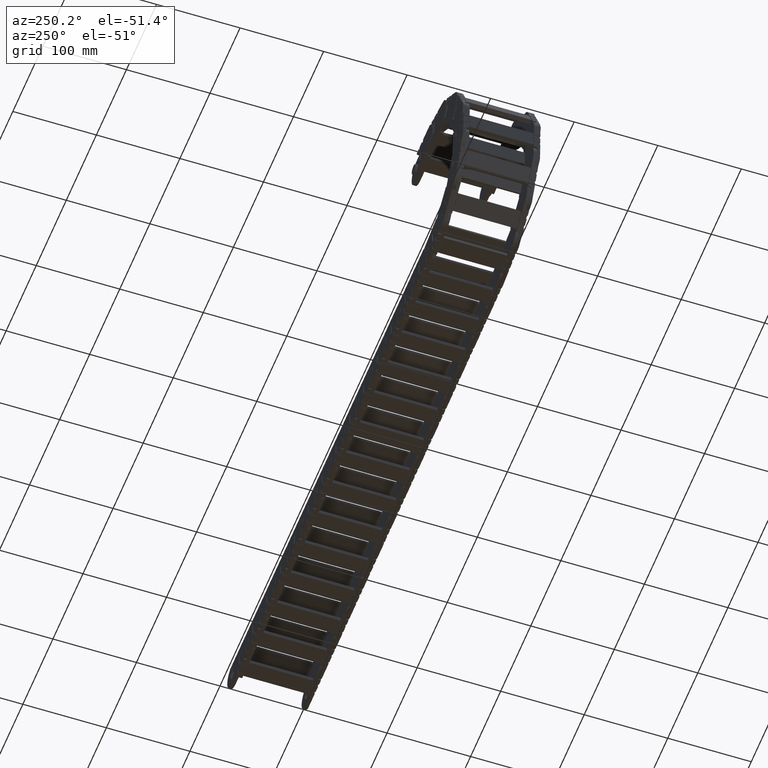
[diagram: clean part render]
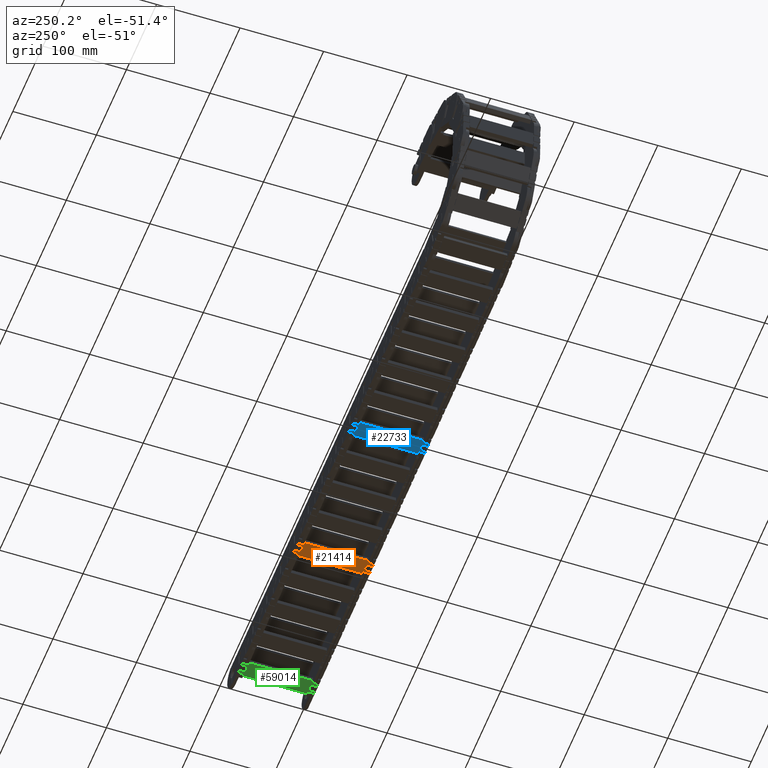
[diagram: same view with three faces highlighted in distinct colors, each labeled with its STEP entity id]
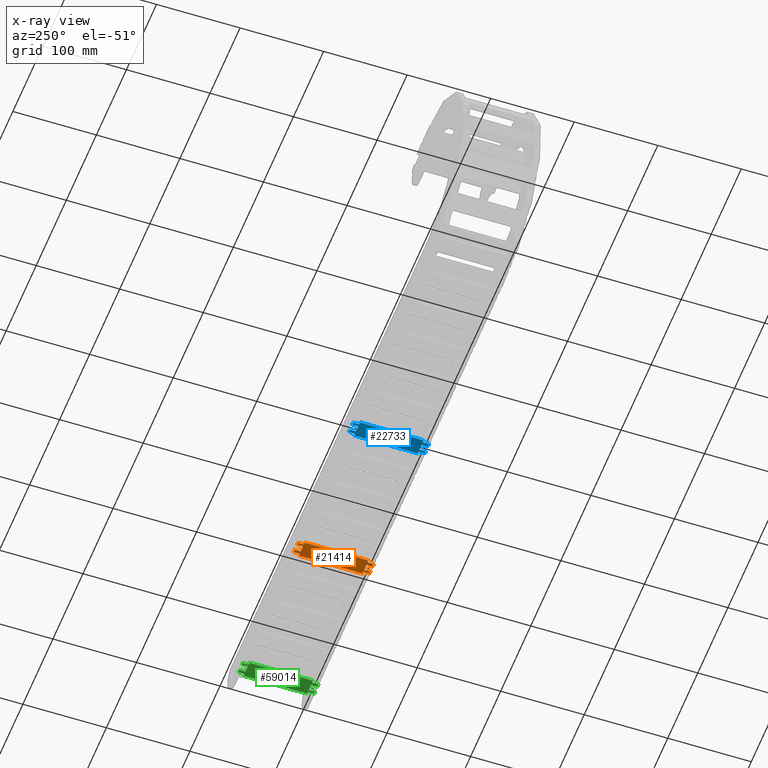
[diagram: x-ray of the same camera — body ghosted, the three highlighted faces saturated]
A machine part, auxiliary view with three faces highlighted in distinct colors.
The next image is the same camera in x-ray (body ghosted, the three faces saturated) — at least one of them is partly hidden behind the body in this view.
Their STEP definitions:

[orange] entity #21414 — the highlighted planar face has unit normal (0, 0, -1).
#486 = LINE ( 'NONE', #66234, #73145 ) ;
#871 = VERTEX_POINT ( 'NONE', #68301 ) ;
#1765 = EDGE_CURVE ( 'NONE', #1865, #20593, #60029, .T. ) ;
#1865 = VERTEX_POINT ( 'NONE', #11821 ) ;
#2405 = VERTEX_POINT ( 'NONE', #26768 ) ;
#2855 = VERTEX_POINT ( 'NONE', #51152 ) ;
#3100 = VECTOR ( 'NONE', #74274, 39.37007874015748143 ) ;
#3180 = ORIENTED_EDGE ( 'NONE', *, *, #47495, .F. ) ;
#4668 = DIRECTION ( 'NONE',  ( 0.000000000000000000, 1.000000000000000000, 0.000000000000000000 ) ) ;
#5022 = EDGE_CURVE ( 'NONE', #42110, #871, #59870, .T. ) ;
#5215 = DIRECTION ( 'NONE',  ( 0.000000000000000000, 1.000000000000000000, 0.000000000000000000 ) ) ;
#5661 = EDGE_CURVE ( 'NONE', #28157, #27145, #69727, .T. ) ;
#6589 = CARTESIAN_POINT ( 'NONE',  ( -7.755905511811024056, 0.01968503937007873988, -0.6692952755905512419 ) ) ;
#7181 = EDGE_CURVE ( 'NONE', #44454, #42110, #15220, .T. ) ;
#7281 = CARTESIAN_POINT ( 'NONE',  ( -8.287440944881890204, 0.01968503937007873988, -0.6692952755905512419 ) ) ;
#7385 = VECTOR ( 'NONE', #63252, 39.37007874015748143 ) ;
#7577 = EDGE_CURVE ( 'NONE', #60026, #2405, #7746, .T. ) ;
#7746 = LINE ( 'NONE', #55216, #46238 ) ;
#8051 = LINE ( 'NONE', #31790, #42300 ) ;
#9388 = CARTESIAN_POINT ( 'NONE',  ( -8.429094488188976442, 3.011732283464566784, -0.6692952755905512419 ) ) ;
#10022 = CARTESIAN_POINT ( 'NONE',  ( -8.287440944881890204, 0.01968503937007873988, -0.6692952755905512419 ) ) ;
#10097 = CARTESIAN_POINT ( 'NONE',  ( -8.429094488188976442, 0.01968503937007873988, -0.6692952755905512419 ) ) ;
#10574 = ORIENTED_EDGE ( 'NONE', *, *, #17466, .F. ) ;
#10885 = DIRECTION ( 'NONE',  ( 0.000000000000000000, 0.000000000000000000, -1.000000000000000000 ) ) ;
#11343 = VECTOR ( 'NONE', #4668, 39.37007874015748143 ) ;
#11821 = CARTESIAN_POINT ( 'NONE',  ( -7.870118110236220765, 3.011732283464566784, -0.6692952755905512419 ) ) ;
#12037 = EDGE_CURVE ( 'NONE', #16089, #21709, #39601, .T. ) ;
#13879 = ORIENTED_EDGE ( 'NONE', *, *, #14211, .F. ) ;
#14211 = EDGE_CURVE ( 'NONE', #24178, #34661, #64351, .T. ) ;
#14266 = LINE ( 'NONE', #55111, #43724 ) ;
#15220 = LINE ( 'NONE', #61521, #11343 ) ;
#15969 = CARTESIAN_POINT ( 'NONE',  ( -8.149606299212598159, 1.515708661417322745, -0.6692952755905512419 ) ) ;
#16089 = VERTEX_POINT ( 'NONE', #63416 ) ;
#16571 = EDGE_CURVE ( 'NONE', #73464, #2855, #26803, .T. ) ;
#17466 = EDGE_CURVE ( 'NONE', #43327, #73464, #19147, .T. ) ;
#17606 = CARTESIAN_POINT ( 'NONE',  ( -7.755905511811024056, 3.011732283464566784, -0.6692952755905512419 ) ) ;
#17672 = CARTESIAN_POINT ( 'NONE',  ( -7.870118110236220765, 3.307047244094488470, -0.6692952755905512419 ) ) ;
#18821 = LINE ( 'NONE', #25028, #62632 ) ;
#18980 = LINE ( 'NONE', #49290, #65681 ) ;
#19147 = LINE ( 'NONE', #59581, #24048 ) ;
#20144 = VERTEX_POINT ( 'NONE', #9388 ) ;
#20201 = VECTOR ( 'NONE', #59695, 39.37007874015748143 ) ;
#20396 = ORIENTED_EDGE ( 'NONE', *, *, #59414, .F. ) ;
#20593 = VERTEX_POINT ( 'NONE', #52407 ) ;
#20856 = ORIENTED_EDGE ( 'NONE', *, *, #7181, .F. ) ;
#21414 = ADVANCED_FACE ( 'NONE', ( #40463 ), #69257, .T. ) ;
#21709 = VERTEX_POINT ( 'NONE', #39995 ) ;
#24048 = VECTOR ( 'NONE', #72449, 39.37007874015748143 ) ;
#24178 = VERTEX_POINT ( 'NONE', #74133 ) ;
#24489 = CARTESIAN_POINT ( 'NONE',  ( -7.870118110236220765, -0.2756299212598425363, -0.6692952755905512419 ) ) ;
#25028 = CARTESIAN_POINT ( 'NONE',  ( -8.011771653543307892, 3.307047244094488470, -0.6692952755905512419 ) ) ;
#26056 = CARTESIAN_POINT ( 'NONE',  ( -8.429094488188976442, -0.2756299212598425363, -0.6692952755905512419 ) ) ;
#26768 = CARTESIAN_POINT ( 'NONE',  ( -8.543307086614174040, 0.01968503937007873988, -0.6692952755905512419 ) ) ;
#26803 = LINE ( 'NONE', #33767, #3100 ) ;
#26980 = VECTOR ( 'NONE', #42701, 39.37007874015748143 ) ;
#27086 = LINE ( 'NONE', #58166, #7385 ) ;
#27145 = VERTEX_POINT ( 'NONE', #69828 ) ;
#28063 = ORIENTED_EDGE ( 'NONE', *, *, #46170, .F. ) ;
#28157 = VERTEX_POINT ( 'NONE', #55524 ) ;
#28485 = VECTOR ( 'NONE', #69548, 39.37007874015748143 ) ;
#28640 = CARTESIAN_POINT ( 'NONE',  ( -8.429094488188976442, 0.01968503937007873988, -0.6692952755905512419 ) ) ;
#30324 = DIRECTION ( 'NONE',  ( 1.000000000000000000, 0.000000000000000000, 0.000000000000000000 ) ) ;
#30531 = LINE ( 'NONE', #35980, #20201 ) ;
#31310 = EDGE_CURVE ( 'NONE', #20593, #28157, #18821, .T. ) ;
#31415 = ORIENTED_EDGE ( 'NONE', *, *, #7577, .F. ) ;
#31517 = ORIENTED_EDGE ( 'NONE', *, *, #60660, .F. ) ;
#31790 = CARTESIAN_POINT ( 'NONE',  ( -8.318937007874016132, 3.011732283464566784, -0.6692952755905512419 ) ) ;
#32210 = VECTOR ( 'NONE', #74590, 39.37007874015748143 ) ;
#32370 = ORIENTED_EDGE ( 'NONE', *, *, #42505, .F. ) ;
#33553 = CARTESIAN_POINT ( 'NONE',  ( -8.011771653543307892, 3.011732283464566784, -0.6692952755905512419 ) ) ;
#33761 = CARTESIAN_POINT ( 'NONE',  ( -8.287440944881890204, -0.2756299212598425363, -0.6692952755905512419 ) ) ;
#33767 = CARTESIAN_POINT ( 'NONE',  ( -7.980275590551181075, -0.2756299212598425363, -0.6692952755905512419 ) ) ;
#33970 = CARTESIAN_POINT ( 'NONE',  ( -8.429094488188976442, 3.307047244094488470, -0.6692952755905512419 ) ) ;
#33980 = CARTESIAN_POINT ( 'NONE',  ( -8.543307086614174040, 3.011732283464566784, -0.6692952755905512419 ) ) ;
#34255 = EDGE_CURVE ( 'NONE', #21709, #43327, #71897, .T. ) ;
#34576 = ORIENTED_EDGE ( 'NONE', *, *, #34255, .F. ) ;
#34661 = VERTEX_POINT ( 'NONE', #72583 ) ;
#34728 = DIRECTION ( 'NONE',  ( -1.000000000000000000, 0.000000000000000000, 0.000000000000000000 ) ) ;
#35933 = DIRECTION ( 'NONE',  ( -1.000000000000000000, 0.000000000000000000, 0.000000000000000000 ) ) ;
#35980 = CARTESIAN_POINT ( 'NONE',  ( -7.870118110236220765, 3.011732283464566784, -0.6692952755905512419 ) ) ;
#36830 = EDGE_LOOP ( 'NONE', ( #58013, #72964, #70845, #28063, #32370, #52705, #20856, #64176, #47604, #10574, #34576, #52668, #54994, #67620, #31415, #53727, #3180, #20396, #13879, #31517 ) ) ;
#38628 = VECTOR ( 'NONE', #30324, 39.37007874015748143 ) ;
#39601 = LINE ( 'NONE', #33761, #28485 ) ;
#39995 = CARTESIAN_POINT ( 'NONE',  ( -8.287440944881890204, -0.2756299212598425363, -0.6692952755905512419 ) ) ;
#40463 = FACE_OUTER_BOUND ( 'NONE', #36830, .T. ) ;
#42110 = VERTEX_POINT ( 'NONE', #52051 ) ;
#42300 = VECTOR ( 'NONE', #67580, 39.37007874015748143 ) ;
#42505 = EDGE_CURVE ( 'NONE', #871, #64903, #27086, .T. ) ;
#42608 = VECTOR ( 'NONE', #34728, 39.37007874015748143 ) ;
#42701 = DIRECTION ( 'NONE',  ( 0.000000000000000000, 1.000000000000000000, 0.000000000000000000 ) ) ;
#43327 = VERTEX_POINT ( 'NONE', #10022 ) ;
#43724 = VECTOR ( 'NONE', #61335, 39.37007874015748143 ) ;
#44454 = VERTEX_POINT ( 'NONE', #24489 ) ;
#44716 = VECTOR ( 'NONE', #54837, 39.37007874015748143 ) ;
#45814 = EDGE_CURVE ( 'NONE', #2855, #44454, #14266, .T. ) ;
#46170 = EDGE_CURVE ( 'NONE', #64903, #1865, #30531, .T. ) ;
#46238 = VECTOR ( 'NONE', #55602, 39.37007874015748143 ) ;
#46355 = EDGE_CURVE ( 'NONE', #20144, #60026, #69755, .T. ) ;
#47495 = EDGE_CURVE ( 'NONE', #53614, #20144, #486, .T. ) ;
#47604 = ORIENTED_EDGE ( 'NONE', *, *, #16571, .F. ) ;
#49290 = CARTESIAN_POINT ( 'NONE',  ( -8.429094488188976442, 3.307047244094488470, -0.6692952755905512419 ) ) ;
#51152 = CARTESIAN_POINT ( 'NONE',  ( -7.980275590551181075, -0.2756299212598425363, -0.6692952755905512419 ) ) ;
#52051 = CARTESIAN_POINT ( 'NONE',  ( -7.870118110236220765, 0.01968503937007873988, -0.6692952755905512419 ) ) ;
#52407 = CARTESIAN_POINT ( 'NONE',  ( -7.870118110236220765, 3.307047244094488470, -0.6692952755905512419 ) ) ;
#52464 = VECTOR ( 'NONE', #5215, 39.37007874015748143 ) ;
#52518 = DIRECTION ( 'NONE',  ( 0.000000000000000000, -1.000000000000000000, 0.000000000000000000 ) ) ;
#52668 = ORIENTED_EDGE ( 'NONE', *, *, #12037, .F. ) ;
#52705 = ORIENTED_EDGE ( 'NONE', *, *, #5022, .F. ) ;
#53058 = CARTESIAN_POINT ( 'NONE',  ( -8.318937007874016132, 3.307047244094488470, -0.6692952755905512419 ) ) ;
#53406 = DIRECTION ( 'NONE',  ( 0.000000000000000000, -1.000000000000000000, 0.000000000000000000 ) ) ;
#53614 = VERTEX_POINT ( 'NONE', #33970 ) ;
#53727 = ORIENTED_EDGE ( 'NONE', *, *, #46355, .F. ) ;
#54837 = DIRECTION ( 'NONE',  ( 0.000000000000000000, -1.000000000000000000, 0.000000000000000000 ) ) ;
#54994 = ORIENTED_EDGE ( 'NONE', *, *, #60310, .F. ) ;
#55111 = CARTESIAN_POINT ( 'NONE',  ( -7.870118110236220765, -0.2756299212598425363, -0.6692952755905512419 ) ) ;
#55216 = CARTESIAN_POINT ( 'NONE',  ( -8.543307086614174040, 0.01968503937007873988, -0.6692952755905512419 ) ) ;
#55506 = DIRECTION ( 'NONE',  ( -1.000000000000000000, 0.000000000000000000, 0.000000000000000000 ) ) ;
#55524 = CARTESIAN_POINT ( 'NONE',  ( -8.011771653543307892, 3.307047244094488470, -0.6692952755905512419 ) ) ;
#55602 = DIRECTION ( 'NONE',  ( 0.000000000000000000, -1.000000000000000000, 0.000000000000000000 ) ) ;
#57272 = DIRECTION ( 'NONE',  ( 0.000000000000000000, -1.000000000000000000, 0.000000000000000000 ) ) ;
#57912 = VECTOR ( 'NONE', #71349, 39.37007874015748143 ) ;
#58013 = ORIENTED_EDGE ( 'NONE', *, *, #5661, .F. ) ;
#58166 = CARTESIAN_POINT ( 'NONE',  ( -7.755905511811024056, 3.011732283464566784, -0.6692952755905512419 ) ) ;
#59414 = EDGE_CURVE ( 'NONE', #34661, #53614, #18980, .T. ) ;
#59581 = CARTESIAN_POINT ( 'NONE',  ( -7.980275590551181075, 0.01968503937007873988, -0.6692952755905512419 ) ) ;
#59695 = DIRECTION ( 'NONE',  ( -1.000000000000000000, 0.000000000000000000, 0.000000000000000000 ) ) ;
#59870 = LINE ( 'NONE', #6589, #38628 ) ;
#60026 = VERTEX_POINT ( 'NONE', #74099 ) ;
#60029 = LINE ( 'NONE', #17672, #57912 ) ;
#60310 = EDGE_CURVE ( 'NONE', #62297, #16089, #61450, .T. ) ;
#60485 = CARTESIAN_POINT ( 'NONE',  ( -7.980275590551181075, 0.01968503937007873988, -0.6692952755905512419 ) ) ;
#60660 = EDGE_CURVE ( 'NONE', #27145, #24178, #8051, .T. ) ;
#61335 = DIRECTION ( 'NONE',  ( 1.000000000000000000, 0.000000000000000000, 0.000000000000000000 ) ) ;
#61450 = LINE ( 'NONE', #26056, #44716 ) ;
#61521 = CARTESIAN_POINT ( 'NONE',  ( -7.870118110236220765, 0.01968503937007873988, -0.6692952755905512419 ) ) ;
#61648 = AXIS2_PLACEMENT_3D ( 'NONE', #15969, #10885, #52518 ) ;
#62297 = VERTEX_POINT ( 'NONE', #10097 ) ;
#62632 = VECTOR ( 'NONE', #35933, 39.37007874015748143 ) ;
#63252 = DIRECTION ( 'NONE',  ( 0.000000000000000000, 1.000000000000000000, 0.000000000000000000 ) ) ;
#63416 = CARTESIAN_POINT ( 'NONE',  ( -8.429094488188976442, -0.2756299212598425363, -0.6692952755905512419 ) ) ;
#64176 = ORIENTED_EDGE ( 'NONE', *, *, #45814, .F. ) ;
#64351 = LINE ( 'NONE', #53058, #52464 ) ;
#64717 = VECTOR ( 'NONE', #57272, 39.37007874015748143 ) ;
#64903 = VERTEX_POINT ( 'NONE', #17606 ) ;
#65681 = VECTOR ( 'NONE', #55506, 39.37007874015748143 ) ;
#66234 = CARTESIAN_POINT ( 'NONE',  ( -8.429094488188976442, 3.011732283464566784, -0.6692952755905512419 ) ) ;
#67580 = DIRECTION ( 'NONE',  ( -1.000000000000000000, 0.000000000000000000, 0.000000000000000000 ) ) ;
#67620 = ORIENTED_EDGE ( 'NONE', *, *, #73331, .F. ) ;
#68301 = CARTESIAN_POINT ( 'NONE',  ( -7.755905511811024056, 0.01968503937007873988, -0.6692952755905512419 ) ) ;
#69257 = PLANE ( 'NONE',  #61648 ) ;
#69548 = DIRECTION ( 'NONE',  ( 1.000000000000000000, 0.000000000000000000, 0.000000000000000000 ) ) ;
#69727 = LINE ( 'NONE', #33553, #64717 ) ;
#69755 = LINE ( 'NONE', #33980, #42608 ) ;
#69828 = CARTESIAN_POINT ( 'NONE',  ( -8.011771653543307892, 3.011732283464566784, -0.6692952755905512419 ) ) ;
#70267 = LINE ( 'NONE', #28640, #32210 ) ;
#70845 = ORIENTED_EDGE ( 'NONE', *, *, #1765, .F. ) ;
#71349 = DIRECTION ( 'NONE',  ( 0.000000000000000000, 1.000000000000000000, 0.000000000000000000 ) ) ;
#71897 = LINE ( 'NONE', #7281, #26980 ) ;
#72449 = DIRECTION ( 'NONE',  ( 1.000000000000000000, 0.000000000000000000, 0.000000000000000000 ) ) ;
#72583 = CARTESIAN_POINT ( 'NONE',  ( -8.318937007874016132, 3.307047244094488470, -0.6692952755905512419 ) ) ;
#72964 = ORIENTED_EDGE ( 'NONE', *, *, #31310, .F. ) ;
#73145 = VECTOR ( 'NONE', #53406, 39.37007874015748143 ) ;
#73331 = EDGE_CURVE ( 'NONE', #2405, #62297, #70267, .T. ) ;
#73464 = VERTEX_POINT ( 'NONE', #60485 ) ;
#74099 = CARTESIAN_POINT ( 'NONE',  ( -8.543307086614174040, 3.011732283464566784, -0.6692952755905512419 ) ) ;
#74133 = CARTESIAN_POINT ( 'NONE',  ( -8.318937007874016132, 3.011732283464566784, -0.6692952755905512419 ) ) ;
#74274 = DIRECTION ( 'NONE',  ( 0.000000000000000000, -1.000000000000000000, 0.000000000000000000 ) ) ;
#74590 = DIRECTION ( 'NONE',  ( 1.000000000000000000, 0.000000000000000000, 0.000000000000000000 ) ) ;

[blue] entity #22733 — the highlighted planar face has unit normal (0, 0, -1).
#57 = DIRECTION ( 'NONE',  ( 0.000000000000000000, -1.000000000000000000, 0.000000000000000000 ) ) ;
#170 = CARTESIAN_POINT ( 'NONE',  ( -15.78740157480315176, 3.011732283464566784, -0.6692952755905512419 ) ) ;
#1500 = VECTOR ( 'NONE', #67559, 39.37007874015748143 ) ;
#1824 = DIRECTION ( 'NONE',  ( -1.000000000000000000, 0.000000000000000000, 0.000000000000000000 ) ) ;
#2518 = LINE ( 'NONE', #67870, #60021 ) ;
#3065 = CARTESIAN_POINT ( 'NONE',  ( -15.67318897637795239, 0.01968503937007873988, -0.6692952755905512419 ) ) ;
#3175 = CARTESIAN_POINT ( 'NONE',  ( -15.56303149606299385, 3.307047244094488470, -0.6692952755905512419 ) ) ;
#3799 = VERTEX_POINT ( 'NONE', #19336 ) ;
#3975 = CARTESIAN_POINT ( 'NONE',  ( -15.67318897637795239, 3.011732283464566784, -0.6692952755905512419 ) ) ;
#3991 = LINE ( 'NONE', #9072, #39238 ) ;
#6727 = CARTESIAN_POINT ( 'NONE',  ( -15.22437007874015791, 0.01968503937007873988, -0.6692952755905512419 ) ) ;
#8433 = LINE ( 'NONE', #20908, #18968 ) ;
#8967 = VERTEX_POINT ( 'NONE', #66428 ) ;
#9072 = CARTESIAN_POINT ( 'NONE',  ( -15.67318897637795239, -0.2756299212598425363, -0.6692952755905512419 ) ) ;
#9150 = EDGE_CURVE ( 'NONE', #50579, #21962, #26349, .T. ) ;
#9399 = ORIENTED_EDGE ( 'NONE', *, *, #53265, .F. ) ;
#9402 = VECTOR ( 'NONE', #73921, 39.37007874015748143 ) ;
#10657 = ORIENTED_EDGE ( 'NONE', *, *, #9150, .F. ) ;
#10794 = LINE ( 'NONE', #22484, #62370 ) ;
#11090 = EDGE_CURVE ( 'NONE', #53220, #45892, #3991, .T. ) ;
#11644 = CARTESIAN_POINT ( 'NONE',  ( -15.53153543307086615, -0.2756299212598425363, -0.6692952755905512419 ) ) ;
#12746 = VECTOR ( 'NONE', #68396, 39.37007874015748143 ) ;
#13680 = FACE_OUTER_BOUND ( 'NONE', #50127, .T. ) ;
#14078 = DIRECTION ( 'NONE',  ( 0.000000000000000000, -1.000000000000000000, 0.000000000000000000 ) ) ;
#14482 = VECTOR ( 'NONE', #66985, 39.37007874015748143 ) ;
#14841 = VERTEX_POINT ( 'NONE', #59954 ) ;
#15620 = ORIENTED_EDGE ( 'NONE', *, *, #11090, .F. ) ;
#15813 = EDGE_CURVE ( 'NONE', #44561, #32082, #36254, .T. ) ;
#16580 = CARTESIAN_POINT ( 'NONE',  ( -15.00000000000000000, 3.011732283464566784, -0.6692952755905512419 ) ) ;
#17364 = DIRECTION ( 'NONE',  ( 1.000000000000000000, 0.000000000000000000, 0.000000000000000000 ) ) ;
#18201 = DIRECTION ( 'NONE',  ( 1.000000000000000000, 0.000000000000000000, 0.000000000000000000 ) ) ;
#18463 = VERTEX_POINT ( 'NONE', #170 ) ;
#18720 = VERTEX_POINT ( 'NONE', #39047 ) ;
#18968 = VECTOR ( 'NONE', #67583, 39.37007874015748143 ) ;
#19336 = CARTESIAN_POINT ( 'NONE',  ( -15.78740157480315176, 0.01968503937007873988, -0.6692952755905512419 ) ) ;
#19505 = AXIS2_PLACEMENT_3D ( 'NONE', #60358, #20322, #14078 ) ;
#19603 = CARTESIAN_POINT ( 'NONE',  ( -15.11421259842519760, -0.2756299212598425363, -0.6692952755905512419 ) ) ;
#19610 = EDGE_CURVE ( 'NONE', #24536, #60790, #72170, .T. ) ;
#20322 = DIRECTION ( 'NONE',  ( 0.000000000000000000, 0.000000000000000000, -1.000000000000000000 ) ) ;
#20533 = CARTESIAN_POINT ( 'NONE',  ( -15.25586614173228384, 3.011732283464566784, -0.6692952755905512419 ) ) ;
#20725 = ORIENTED_EDGE ( 'NONE', *, *, #49835, .F. ) ;
#20908 = CARTESIAN_POINT ( 'NONE',  ( -15.25586614173228384, 3.307047244094488470, -0.6692952755905512419 ) ) ;
#21580 = CARTESIAN_POINT ( 'NONE',  ( -15.67318897637795239, 3.307047244094488470, -0.6692952755905512419 ) ) ;
#21962 = VERTEX_POINT ( 'NONE', #44606 ) ;
#22484 = CARTESIAN_POINT ( 'NONE',  ( -15.67318897637795239, 0.01968503937007873988, -0.6692952755905512419 ) ) ;
#22733 = ADVANCED_FACE ( 'NONE', ( #13680 ), #48709, .T. ) ;
#22742 = EDGE_CURVE ( 'NONE', #74695, #24536, #49093, .T. ) ;
#24536 = VERTEX_POINT ( 'NONE', #29709 ) ;
#24731 = CARTESIAN_POINT ( 'NONE',  ( -15.53153543307086615, -0.2756299212598425363, -0.6692952755905512419 ) ) ;
#25385 = VECTOR ( 'NONE', #40151, 39.37007874015748143 ) ;
#25396 = LINE ( 'NONE', #6727, #51019 ) ;
#26021 = CARTESIAN_POINT ( 'NONE',  ( -15.53153543307086615, 0.01968503937007873988, -0.6692952755905512419 ) ) ;
#26309 = ORIENTED_EDGE ( 'NONE', *, *, #31479, .F. ) ;
#26349 = LINE ( 'NONE', #20533, #37697 ) ;
#26588 = DIRECTION ( 'NONE',  ( 0.000000000000000000, -1.000000000000000000, 0.000000000000000000 ) ) ;
#26877 = ORIENTED_EDGE ( 'NONE', *, *, #45774, .F. ) ;
#27502 = EDGE_CURVE ( 'NONE', #14841, #67286, #39029, .T. ) ;
#27822 = LINE ( 'NONE', #76432, #30205 ) ;
#28174 = EDGE_CURVE ( 'NONE', #72398, #50579, #8433, .T. ) ;
#28289 = ORIENTED_EDGE ( 'NONE', *, *, #68490, .F. ) ;
#28671 = EDGE_CURVE ( 'NONE', #32082, #76309, #2518, .T. ) ;
#29224 = ORIENTED_EDGE ( 'NONE', *, *, #15813, .F. ) ;
#29709 = CARTESIAN_POINT ( 'NONE',  ( -15.00000000000000000, 0.01968503937007873988, -0.6692952755905512419 ) ) ;
#30194 = CARTESIAN_POINT ( 'NONE',  ( -15.11421259842519760, 0.01968503937007873988, -0.6692952755905512419 ) ) ;
#30205 = VECTOR ( 'NONE', #34405, 39.37007874015748143 ) ;
#30239 = CARTESIAN_POINT ( 'NONE',  ( -15.11421259842519760, 0.01968503937007873988, -0.6692952755905512419 ) ) ;
#30408 = ORIENTED_EDGE ( 'NONE', *, *, #28671, .F. ) ;
#31479 = EDGE_CURVE ( 'NONE', #8967, #52641, #57255, .T. ) ;
#32065 = DIRECTION ( 'NONE',  ( 0.000000000000000000, 1.000000000000000000, 0.000000000000000000 ) ) ;
#32082 = VERTEX_POINT ( 'NONE', #53004 ) ;
#32781 = ORIENTED_EDGE ( 'NONE', *, *, #72865, .F. ) ;
#33954 = CARTESIAN_POINT ( 'NONE',  ( -15.56303149606299385, 3.307047244094488470, -0.6692952755905512419 ) ) ;
#34405 = DIRECTION ( 'NONE',  ( -1.000000000000000000, 0.000000000000000000, 0.000000000000000000 ) ) ;
#34744 = ORIENTED_EDGE ( 'NONE', *, *, #57846, .F. ) ;
#35573 = VECTOR ( 'NONE', #64323, 39.37007874015748143 ) ;
#36161 = VERTEX_POINT ( 'NONE', #11644 ) ;
#36254 = LINE ( 'NONE', #59964, #75138 ) ;
#36792 = ORIENTED_EDGE ( 'NONE', *, *, #76943, .F. ) ;
#36844 = LINE ( 'NONE', #30239, #1500 ) ;
#37416 = VECTOR ( 'NONE', #17364, 39.37007874015748143 ) ;
#37422 = CARTESIAN_POINT ( 'NONE',  ( -15.00000000000000000, 0.01968503937007873988, -0.6692952755905512419 ) ) ;
#37697 = VECTOR ( 'NONE', #43078, 39.37007874015748143 ) ;
#37726 = CARTESIAN_POINT ( 'NONE',  ( -15.78740157480315176, 0.01968503937007873988, -0.6692952755905512419 ) ) ;
#38439 = ORIENTED_EDGE ( 'NONE', *, *, #28174, .F. ) ;
#39029 = LINE ( 'NONE', #33954, #76109 ) ;
#39047 = CARTESIAN_POINT ( 'NONE',  ( -15.53153543307086615, 0.01968503937007873988, -0.6692952755905512419 ) ) ;
#39080 = DIRECTION ( 'NONE',  ( 1.000000000000000000, 0.000000000000000000, 0.000000000000000000 ) ) ;
#39238 = VECTOR ( 'NONE', #26588, 39.37007874015748143 ) ;
#39249 = EDGE_CURVE ( 'NONE', #18463, #3799, #68030, .T. ) ;
#40151 = DIRECTION ( 'NONE',  ( 0.000000000000000000, -1.000000000000000000, 0.000000000000000000 ) ) ;
#40619 = VERTEX_POINT ( 'NONE', #71965 ) ;
#41421 = ORIENTED_EDGE ( 'NONE', *, *, #61453, .F. ) ;
#43078 = DIRECTION ( 'NONE',  ( 0.000000000000000000, -1.000000000000000000, 0.000000000000000000 ) ) ;
#44561 = VERTEX_POINT ( 'NONE', #52025 ) ;
#44606 = CARTESIAN_POINT ( 'NONE',  ( -15.25586614173228384, 3.011732283464566784, -0.6692952755905512419 ) ) ;
#44899 = CARTESIAN_POINT ( 'NONE',  ( -15.11421259842519760, 3.307047244094488470, -0.6692952755905512419 ) ) ;
#45309 = LINE ( 'NONE', #21580, #35573 ) ;
#45680 = EDGE_CURVE ( 'NONE', #3799, #53220, #10794, .T. ) ;
#45686 = VECTOR ( 'NONE', #60648, 39.37007874015748143 ) ;
#45774 = EDGE_CURVE ( 'NONE', #76309, #74695, #36844, .T. ) ;
#45892 = VERTEX_POINT ( 'NONE', #63244 ) ;
#47320 = CARTESIAN_POINT ( 'NONE',  ( -15.25586614173228384, 3.307047244094488470, -0.6692952755905512419 ) ) ;
#47469 = VECTOR ( 'NONE', #32065, 39.37007874015748143 ) ;
#48709 = PLANE ( 'NONE',  #19505 ) ;
#49093 = LINE ( 'NONE', #37422, #14482 ) ;
#49835 = EDGE_CURVE ( 'NONE', #45892, #36161, #54288, .T. ) ;
#50127 = EDGE_LOOP ( 'NONE', ( #10657, #38439, #34744, #58561, #57319, #64500, #26877, #30408, #29224, #41421, #32781, #20725, #15620, #54551, #53350, #36792, #26309, #28289, #75932, #9399 ) ) ;
#50579 = VERTEX_POINT ( 'NONE', #47320 ) ;
#51019 = VECTOR ( 'NONE', #72092, 39.37007874015748143 ) ;
#51070 = DIRECTION ( 'NONE',  ( 0.000000000000000000, 1.000000000000000000, 0.000000000000000000 ) ) ;
#52025 = CARTESIAN_POINT ( 'NONE',  ( -15.22437007874015791, 0.01968503937007873988, -0.6692952755905512419 ) ) ;
#52641 = VERTEX_POINT ( 'NONE', #53765 ) ;
#53004 = CARTESIAN_POINT ( 'NONE',  ( -15.22437007874015791, -0.2756299212598425363, -0.6692952755905512419 ) ) ;
#53220 = VERTEX_POINT ( 'NONE', #3065 ) ;
#53265 = EDGE_CURVE ( 'NONE', #21962, #14841, #73112, .T. ) ;
#53350 = ORIENTED_EDGE ( 'NONE', *, *, #39249, .F. ) ;
#53765 = CARTESIAN_POINT ( 'NONE',  ( -15.67318897637795239, 3.011732283464566784, -0.6692952755905512419 ) ) ;
#54288 = LINE ( 'NONE', #24731, #37416 ) ;
#54551 = ORIENTED_EDGE ( 'NONE', *, *, #45680, .F. ) ;
#55027 = CARTESIAN_POINT ( 'NONE',  ( -15.00000000000000000, 3.011732283464566784, -0.6692952755905512419 ) ) ;
#55191 = LINE ( 'NONE', #26021, #71933 ) ;
#55894 = LINE ( 'NONE', #60557, #59508 ) ;
#57255 = LINE ( 'NONE', #3975, #25385 ) ;
#57319 = ORIENTED_EDGE ( 'NONE', *, *, #19610, .F. ) ;
#57516 = CARTESIAN_POINT ( 'NONE',  ( -15.11421259842519760, 3.307047244094488470, -0.6692952755905512419 ) ) ;
#57846 = EDGE_CURVE ( 'NONE', #40619, #72398, #63350, .T. ) ;
#58561 = ORIENTED_EDGE ( 'NONE', *, *, #59485, .F. ) ;
#59485 = EDGE_CURVE ( 'NONE', #60790, #40619, #55894, .T. ) ;
#59508 = VECTOR ( 'NONE', #1824, 39.37007874015748143 ) ;
#59954 = CARTESIAN_POINT ( 'NONE',  ( -15.56303149606299385, 3.011732283464566784, -0.6692952755905512419 ) ) ;
#59964 = CARTESIAN_POINT ( 'NONE',  ( -15.22437007874015791, -0.2756299212598425363, -0.6692952755905512419 ) ) ;
#60021 = VECTOR ( 'NONE', #39080, 39.37007874015748143 ) ;
#60358 = CARTESIAN_POINT ( 'NONE',  ( -15.39370078740157588, 1.515708661417322745, -0.6692952755905512419 ) ) ;
#60557 = CARTESIAN_POINT ( 'NONE',  ( -15.11421259842519760, 3.011732283464566784, -0.6692952755905512419 ) ) ;
#60648 = DIRECTION ( 'NONE',  ( 0.000000000000000000, -1.000000000000000000, 0.000000000000000000 ) ) ;
#60790 = VERTEX_POINT ( 'NONE', #16580 ) ;
#61453 = EDGE_CURVE ( 'NONE', #18720, #44561, #25396, .T. ) ;
#61805 = CARTESIAN_POINT ( 'NONE',  ( -15.56303149606299385, 3.011732283464566784, -0.6692952755905512419 ) ) ;
#62370 = VECTOR ( 'NONE', #18201, 39.37007874015748143 ) ;
#63244 = CARTESIAN_POINT ( 'NONE',  ( -15.67318897637795239, -0.2756299212598425363, -0.6692952755905512419 ) ) ;
#63350 = LINE ( 'NONE', #57516, #9402 ) ;
#64323 = DIRECTION ( 'NONE',  ( -1.000000000000000000, 0.000000000000000000, 0.000000000000000000 ) ) ;
#64500 = ORIENTED_EDGE ( 'NONE', *, *, #22742, .F. ) ;
#66428 = CARTESIAN_POINT ( 'NONE',  ( -15.67318897637795239, 3.307047244094488470, -0.6692952755905512419 ) ) ;
#66985 = DIRECTION ( 'NONE',  ( 1.000000000000000000, 0.000000000000000000, 0.000000000000000000 ) ) ;
#67286 = VERTEX_POINT ( 'NONE', #3175 ) ;
#67559 = DIRECTION ( 'NONE',  ( 0.000000000000000000, 1.000000000000000000, 0.000000000000000000 ) ) ;
#67583 = DIRECTION ( 'NONE',  ( -1.000000000000000000, 0.000000000000000000, 0.000000000000000000 ) ) ;
#67870 = CARTESIAN_POINT ( 'NONE',  ( -15.11421259842519760, -0.2756299212598425363, -0.6692952755905512419 ) ) ;
#68030 = LINE ( 'NONE', #37726, #45686 ) ;
#68396 = DIRECTION ( 'NONE',  ( -1.000000000000000000, 0.000000000000000000, 0.000000000000000000 ) ) ;
#68490 = EDGE_CURVE ( 'NONE', #67286, #8967, #45309, .T. ) ;
#71933 = VECTOR ( 'NONE', #73889, 39.37007874015748143 ) ;
#71965 = CARTESIAN_POINT ( 'NONE',  ( -15.11421259842519760, 3.011732283464566784, -0.6692952755905512419 ) ) ;
#72092 = DIRECTION ( 'NONE',  ( 1.000000000000000000, 0.000000000000000000, 0.000000000000000000 ) ) ;
#72170 = LINE ( 'NONE', #55027, #47469 ) ;
#72398 = VERTEX_POINT ( 'NONE', #44899 ) ;
#72865 = EDGE_CURVE ( 'NONE', #36161, #18720, #55191, .T. ) ;
#73112 = LINE ( 'NONE', #61805, #12746 ) ;
#73889 = DIRECTION ( 'NONE',  ( 0.000000000000000000, 1.000000000000000000, 0.000000000000000000 ) ) ;
#73921 = DIRECTION ( 'NONE',  ( 0.000000000000000000, 1.000000000000000000, 0.000000000000000000 ) ) ;
#74695 = VERTEX_POINT ( 'NONE', #30194 ) ;
#75138 = VECTOR ( 'NONE', #57, 39.37007874015748143 ) ;
#75932 = ORIENTED_EDGE ( 'NONE', *, *, #27502, .F. ) ;
#76109 = VECTOR ( 'NONE', #51070, 39.37007874015748143 ) ;
#76309 = VERTEX_POINT ( 'NONE', #19603 ) ;
#76432 = CARTESIAN_POINT ( 'NONE',  ( -15.78740157480315176, 3.011732283464566784, -0.6692952755905512419 ) ) ;
#76943 = EDGE_CURVE ( 'NONE', #52641, #18463, #27822, .T. ) ;

[green] entity #59014 — the highlighted planar face has unit normal (0, 0, -1).
#1529 = DIRECTION ( 'NONE',  ( -1.000000000000000000, 0.000000000000000000, 0.000000000000000000 ) ) ;
#1602 = EDGE_CURVE ( 'NONE', #45146, #5762, #63955, .T. ) ;
#1846 = CARTESIAN_POINT ( 'NONE',  ( -1.185000000000000053, 3.307047244094488470, -0.6692952755905512419 ) ) ;
#2339 = ORIENTED_EDGE ( 'NONE', *, *, #22819, .F. ) ;
#2348 = VERTEX_POINT ( 'NONE', #74613 ) ;
#3192 = VECTOR ( 'NONE', #19921, 39.37007874015748143 ) ;
#4039 = VECTOR ( 'NONE', #47229, 39.37007874015748143 ) ;
#4162 = EDGE_CURVE ( 'NONE', #2348, #32742, #22764, .T. ) ;
#4442 = ORIENTED_EDGE ( 'NONE', *, *, #73246, .F. ) ;
#4569 = DIRECTION ( 'NONE',  ( 1.000000000000000000, 0.000000000000000000, 0.000000000000000000 ) ) ;
#4746 = AXIS2_PLACEMENT_3D ( 'NONE', #71596, #17924, #12060 ) ;
#5762 = VERTEX_POINT ( 'NONE', #71664 ) ;
#6213 = CARTESIAN_POINT ( 'NONE',  ( -1.299212598425196985, 3.011732283464566784, -0.6692952755905512419 ) ) ;
#7471 = ORIENTED_EDGE ( 'NONE', *, *, #60291, .F. ) ;
#7555 = EDGE_CURVE ( 'NONE', #59762, #41851, #8906, .T. ) ;
#8398 = CARTESIAN_POINT ( 'NONE',  ( -0.6260236220472440438, -0.2756299212598425363, -0.6692952755905512419 ) ) ;
#8906 = LINE ( 'NONE', #26816, #12679 ) ;
#9036 = LINE ( 'NONE', #68923, #69511 ) ;
#9946 = CARTESIAN_POINT ( 'NONE',  ( -0.6260236220472440438, 3.307047244094488470, -0.6692952755905512419 ) ) ;
#10218 = ORIENTED_EDGE ( 'NONE', *, *, #33592, .F. ) ;
#10652 = DIRECTION ( 'NONE',  ( -1.000000000000000000, 0.000000000000000000, 0.000000000000000000 ) ) ;
#10888 = VECTOR ( 'NONE', #57196, 39.37007874015748143 ) ;
#11712 = VERTEX_POINT ( 'NONE', #57572 ) ;
#12048 = EDGE_CURVE ( 'NONE', #58522, #20530, #34147, .T. ) ;
#12060 = DIRECTION ( 'NONE',  ( 0.000000000000000000, -1.000000000000000000, 0.000000000000000000 ) ) ;
#12340 = EDGE_CURVE ( 'NONE', #22226, #75574, #67162, .T. ) ;
#12677 = ORIENTED_EDGE ( 'NONE', *, *, #7555, .F. ) ;
#12679 = VECTOR ( 'NONE', #1529, 39.37007874015748143 ) ;
#14848 = DIRECTION ( 'NONE',  ( -1.000000000000000000, 0.000000000000000000, 0.000000000000000000 ) ) ;
#15410 = VERTEX_POINT ( 'NONE', #60061 ) ;
#15587 = CARTESIAN_POINT ( 'NONE',  ( -0.7676771653543307261, 3.011732283464566784, -0.6692952755905512419 ) ) ;
#16202 = EDGE_CURVE ( 'NONE', #32742, #58522, #29180, .T. ) ;
#16560 = VERTEX_POINT ( 'NONE', #61810 ) ;
#17924 = DIRECTION ( 'NONE',  ( 0.000000000000000000, 0.000000000000000000, -1.000000000000000000 ) ) ;
#18455 = CARTESIAN_POINT ( 'NONE',  ( -1.074842519685039299, 3.307047244094488470, -0.6692952755905512419 ) ) ;
#19668 = ORIENTED_EDGE ( 'NONE', *, *, #57605, .F. ) ;
#19850 = CARTESIAN_POINT ( 'NONE',  ( -1.299212598425196985, 0.01968503937007873988, -0.6692952755905512419 ) ) ;
#19921 = DIRECTION ( 'NONE',  ( -1.000000000000000000, 0.000000000000000000, 0.000000000000000000 ) ) ;
#20530 = VERTEX_POINT ( 'NONE', #43929 ) ;
#21079 = LINE ( 'NONE', #44803, #53016 ) ;
#21582 = CARTESIAN_POINT ( 'NONE',  ( -1.185000000000000053, 3.307047244094488470, -0.6692952755905512419 ) ) ;
#22226 = VERTEX_POINT ( 'NONE', #70621 ) ;
#22343 = CARTESIAN_POINT ( 'NONE',  ( -1.074842519685039299, 3.011732283464566784, -0.6692952755905512419 ) ) ;
#22764 = LINE ( 'NONE', #69830, #24810 ) ;
#22819 = EDGE_CURVE ( 'NONE', #22894, #22226, #70724, .T. ) ;
#22894 = VERTEX_POINT ( 'NONE', #57514 ) ;
#23122 = LINE ( 'NONE', #18455, #4039 ) ;
#24432 = ORIENTED_EDGE ( 'NONE', *, *, #12048, .F. ) ;
#24810 = VECTOR ( 'NONE', #40256, 39.37007874015748143 ) ;
#26080 = VERTEX_POINT ( 'NONE', #42834 ) ;
#26389 = CARTESIAN_POINT ( 'NONE',  ( -0.6260236220472440438, -0.2756299212598425363, -0.6692952755905512419 ) ) ;
#26816 = CARTESIAN_POINT ( 'NONE',  ( -1.299212598425196985, 3.011732283464566784, -0.6692952755905512419 ) ) ;
#27162 = ORIENTED_EDGE ( 'NONE', *, *, #56075, .F. ) ;
#27954 = CARTESIAN_POINT ( 'NONE',  ( -0.7361811023622047978, -0.2756299212598425363, -0.6692952755905512419 ) ) ;
#28029 = CARTESIAN_POINT ( 'NONE',  ( -1.043346456692913371, 0.01968503937007873988, -0.6692952755905512419 ) ) ;
#28057 = DIRECTION ( 'NONE',  ( 0.000000000000000000, -1.000000000000000000, 0.000000000000000000 ) ) ;
#28720 = EDGE_CURVE ( 'NONE', #16560, #61896, #33612, .T. ) ;
#29011 = CARTESIAN_POINT ( 'NONE',  ( -1.185000000000000053, 3.011732283464566784, -0.6692952755905512419 ) ) ;
#29180 = LINE ( 'NONE', #70801, #45314 ) ;
#29400 = ORIENTED_EDGE ( 'NONE', *, *, #30256, .F. ) ;
#30250 = CARTESIAN_POINT ( 'NONE',  ( -0.5118110236220472231, 0.01968503937007873988, -0.6692952755905512419 ) ) ;
#30256 = EDGE_CURVE ( 'NONE', #65203, #22894, #44076, .T. ) ;
#30264 = ORIENTED_EDGE ( 'NONE', *, *, #43163, .F. ) ;
#30845 = DIRECTION ( 'NONE',  ( 1.000000000000000000, 0.000000000000000000, 0.000000000000000000 ) ) ;
#32742 = VERTEX_POINT ( 'NONE', #73919 ) ;
#32747 = CARTESIAN_POINT ( 'NONE',  ( -0.5118110236220472231, 3.011732283464566784, -0.6692952755905512419 ) ) ;
#33500 = DIRECTION ( 'NONE',  ( 0.000000000000000000, 1.000000000000000000, 0.000000000000000000 ) ) ;
#33592 = EDGE_CURVE ( 'NONE', #56621, #11712, #21079, .T. ) ;
#33612 = LINE ( 'NONE', #21582, #36444 ) ;
#33867 = CARTESIAN_POINT ( 'NONE',  ( -0.5118110236220472231, 0.01968503937007873988, -0.6692952755905512419 ) ) ;
#34138 = EDGE_CURVE ( 'NONE', #75574, #15410, #47776, .T. ) ;
#34147 = LINE ( 'NONE', #40362, #73270 ) ;
#34195 = ORIENTED_EDGE ( 'NONE', *, *, #63331, .F. ) ;
#34556 = ORIENTED_EDGE ( 'NONE', *, *, #48751, .F. ) ;
#34871 = ORIENTED_EDGE ( 'NONE', *, *, #12340, .F. ) ;
#35509 = VECTOR ( 'NONE', #41633, 39.37007874015748143 ) ;
#35791 = FACE_OUTER_BOUND ( 'NONE', #75312, .T. ) ;
#36444 = VECTOR ( 'NONE', #69016, 39.37007874015748143 ) ;
#37343 = LINE ( 'NONE', #19850, #64567 ) ;
#39363 = VECTOR ( 'NONE', #46991, 39.37007874015748143 ) ;
#39508 = ORIENTED_EDGE ( 'NONE', *, *, #4162, .F. ) ;
#40256 = DIRECTION ( 'NONE',  ( 1.000000000000000000, 0.000000000000000000, 0.000000000000000000 ) ) ;
#40362 = CARTESIAN_POINT ( 'NONE',  ( -1.043346456692913371, -0.2756299212598425363, -0.6692952755905512419 ) ) ;
#40477 = EDGE_CURVE ( 'NONE', #15410, #46729, #40834, .T. ) ;
#40834 = LINE ( 'NONE', #33867, #10888 ) ;
#41432 = VECTOR ( 'NONE', #30845, 39.37007874015748143 ) ;
#41633 = DIRECTION ( 'NONE',  ( 0.000000000000000000, 1.000000000000000000, 0.000000000000000000 ) ) ;
#41851 = VERTEX_POINT ( 'NONE', #6213 ) ;
#42834 = CARTESIAN_POINT ( 'NONE',  ( -0.5118110236220472231, 3.011732283464566784, -0.6692952755905512419 ) ) ;
#43089 = LINE ( 'NONE', #67588, #58290 ) ;
#43163 = EDGE_CURVE ( 'NONE', #46729, #26080, #68516, .T. ) ;
#43172 = ORIENTED_EDGE ( 'NONE', *, *, #40477, .F. ) ;
#43929 = CARTESIAN_POINT ( 'NONE',  ( -1.043346456692913371, -0.2756299212598425363, -0.6692952755905512419 ) ) ;
#44076 = LINE ( 'NONE', #54566, #41432 ) ;
#44803 = CARTESIAN_POINT ( 'NONE',  ( -0.7676771653543307261, 3.307047244094488470, -0.6692952755905512419 ) ) ;
#45146 = VERTEX_POINT ( 'NONE', #15587 ) ;
#45314 = VECTOR ( 'NONE', #70038, 39.37007874015748143 ) ;
#46729 = VERTEX_POINT ( 'NONE', #30250 ) ;
#46991 = DIRECTION ( 'NONE',  ( 0.000000000000000000, 1.000000000000000000, 0.000000000000000000 ) ) ;
#47083 = LINE ( 'NONE', #70819, #35509 ) ;
#47229 = DIRECTION ( 'NONE',  ( 0.000000000000000000, 1.000000000000000000, 0.000000000000000000 ) ) ;
#47273 = VECTOR ( 'NONE', #33500, 39.37007874015748143 ) ;
#47776 = LINE ( 'NONE', #71516, #39363 ) ;
#47853 = PLANE ( 'NONE',  #4746 ) ;
#48702 = CARTESIAN_POINT ( 'NONE',  ( -1.185000000000000053, -0.2756299212598425363, -0.6692952755905512419 ) ) ;
#48751 = EDGE_CURVE ( 'NONE', #61896, #59762, #9036, .T. ) ;
#50189 = ORIENTED_EDGE ( 'NONE', *, *, #34138, .F. ) ;
#52818 = DIRECTION ( 'NONE',  ( 0.000000000000000000, -1.000000000000000000, 0.000000000000000000 ) ) ;
#53016 = VECTOR ( 'NONE', #14848, 39.37007874015748143 ) ;
#54566 = CARTESIAN_POINT ( 'NONE',  ( -0.7361811023622047978, 0.01968503937007873988, -0.6692952755905512419 ) ) ;
#56075 = EDGE_CURVE ( 'NONE', #26080, #65805, #67356, .T. ) ;
#56621 = VERTEX_POINT ( 'NONE', #9946 ) ;
#57196 = DIRECTION ( 'NONE',  ( 1.000000000000000000, 0.000000000000000000, 0.000000000000000000 ) ) ;
#57448 = ORIENTED_EDGE ( 'NONE', *, *, #28720, .F. ) ;
#57457 = ORIENTED_EDGE ( 'NONE', *, *, #16202, .F. ) ;
#57514 = CARTESIAN_POINT ( 'NONE',  ( -0.7361811023622047978, 0.01968503937007873988, -0.6692952755905512419 ) ) ;
#57572 = CARTESIAN_POINT ( 'NONE',  ( -0.7676771653543307261, 3.307047244094488470, -0.6692952755905512419 ) ) ;
#57605 = EDGE_CURVE ( 'NONE', #20530, #65203, #47083, .T. ) ;
#58290 = VECTOR ( 'NONE', #74216, 39.37007874015748143 ) ;
#58522 = VERTEX_POINT ( 'NONE', #48702 ) ;
#59014 = ADVANCED_FACE ( 'NONE', ( #35791 ), #47853, .T. ) ;
#59762 = VERTEX_POINT ( 'NONE', #29011 ) ;
#60061 = CARTESIAN_POINT ( 'NONE',  ( -0.6260236220472440438, 0.01968503937007873988, -0.6692952755905512419 ) ) ;
#60291 = EDGE_CURVE ( 'NONE', #41851, #2348, #37343, .T. ) ;
#60956 = ORIENTED_EDGE ( 'NONE', *, *, #1602, .F. ) ;
#61054 = DIRECTION ( 'NONE',  ( 0.000000000000000000, -1.000000000000000000, 0.000000000000000000 ) ) ;
#61707 = DIRECTION ( 'NONE',  ( 1.000000000000000000, 0.000000000000000000, 0.000000000000000000 ) ) ;
#61810 = CARTESIAN_POINT ( 'NONE',  ( -1.074842519685039299, 3.307047244094488470, -0.6692952755905512419 ) ) ;
#61896 = VERTEX_POINT ( 'NONE', #1846 ) ;
#62705 = DIRECTION ( 'NONE',  ( 0.000000000000000000, -1.000000000000000000, 0.000000000000000000 ) ) ;
#63331 = EDGE_CURVE ( 'NONE', #5762, #16560, #23122, .T. ) ;
#63955 = LINE ( 'NONE', #22343, #65375 ) ;
#64412 = VECTOR ( 'NONE', #28057, 39.37007874015748143 ) ;
#64567 = VECTOR ( 'NONE', #61054, 39.37007874015748143 ) ;
#65203 = VERTEX_POINT ( 'NONE', #28029 ) ;
#65375 = VECTOR ( 'NONE', #10652, 39.37007874015748143 ) ;
#65805 = VERTEX_POINT ( 'NONE', #71002 ) ;
#66211 = CARTESIAN_POINT ( 'NONE',  ( -0.6260236220472440438, 3.011732283464566784, -0.6692952755905512419 ) ) ;
#67162 = LINE ( 'NONE', #8398, #72096 ) ;
#67356 = LINE ( 'NONE', #66211, #3192 ) ;
#67588 = CARTESIAN_POINT ( 'NONE',  ( -0.6260236220472440438, 3.307047244094488470, -0.6692952755905512419 ) ) ;
#68516 = LINE ( 'NONE', #32747, #47273 ) ;
#68923 = CARTESIAN_POINT ( 'NONE',  ( -1.185000000000000053, 3.011732283464566784, -0.6692952755905512419 ) ) ;
#69016 = DIRECTION ( 'NONE',  ( -1.000000000000000000, 0.000000000000000000, 0.000000000000000000 ) ) ;
#69511 = VECTOR ( 'NONE', #62705, 39.37007874015748143 ) ;
#69671 = LINE ( 'NONE', #75154, #64412 ) ;
#69830 = CARTESIAN_POINT ( 'NONE',  ( -1.185000000000000053, 0.01968503937007873988, -0.6692952755905512419 ) ) ;
#70038 = DIRECTION ( 'NONE',  ( 0.000000000000000000, -1.000000000000000000, 0.000000000000000000 ) ) ;
#70621 = CARTESIAN_POINT ( 'NONE',  ( -0.7361811023622047978, -0.2756299212598425363, -0.6692952755905512419 ) ) ;
#70724 = LINE ( 'NONE', #27954, #74146 ) ;
#70801 = CARTESIAN_POINT ( 'NONE',  ( -1.185000000000000053, -0.2756299212598425363, -0.6692952755905512419 ) ) ;
#70819 = CARTESIAN_POINT ( 'NONE',  ( -1.043346456692913371, 0.01968503937007873988, -0.6692952755905512419 ) ) ;
#71002 = CARTESIAN_POINT ( 'NONE',  ( -0.6260236220472440438, 3.011732283464566784, -0.6692952755905512419 ) ) ;
#71516 = CARTESIAN_POINT ( 'NONE',  ( -0.6260236220472440438, 0.01968503937007873988, -0.6692952755905512419 ) ) ;
#71596 = CARTESIAN_POINT ( 'NONE',  ( -0.9055118110236221041, 1.515708661417322745, -0.6692952755905512419 ) ) ;
#71664 = CARTESIAN_POINT ( 'NONE',  ( -1.074842519685039299, 3.011732283464566784, -0.6692952755905512419 ) ) ;
#72096 = VECTOR ( 'NONE', #61707, 39.37007874015748143 ) ;
#72723 = EDGE_CURVE ( 'NONE', #11712, #45146, #69671, .T. ) ;
#73246 = EDGE_CURVE ( 'NONE', #65805, #56621, #43089, .T. ) ;
#73270 = VECTOR ( 'NONE', #4569, 39.37007874015748143 ) ;
#73919 = CARTESIAN_POINT ( 'NONE',  ( -1.185000000000000053, 0.01968503937007873988, -0.6692952755905512419 ) ) ;
#74146 = VECTOR ( 'NONE', #52818, 39.37007874015748143 ) ;
#74216 = DIRECTION ( 'NONE',  ( 0.000000000000000000, 1.000000000000000000, 0.000000000000000000 ) ) ;
#74613 = CARTESIAN_POINT ( 'NONE',  ( -1.299212598425196985, 0.01968503937007873988, -0.6692952755905512419 ) ) ;
#75154 = CARTESIAN_POINT ( 'NONE',  ( -0.7676771653543307261, 3.011732283464566784, -0.6692952755905512419 ) ) ;
#75182 = ORIENTED_EDGE ( 'NONE', *, *, #72723, .F. ) ;
#75312 = EDGE_LOOP ( 'NONE', ( #75182, #10218, #4442, #27162, #30264, #43172, #50189, #34871, #2339, #29400, #19668, #24432, #57457, #39508, #7471, #12677, #34556, #57448, #34195, #60956 ) ) ;
#75574 = VERTEX_POINT ( 'NONE', #26389 ) ;